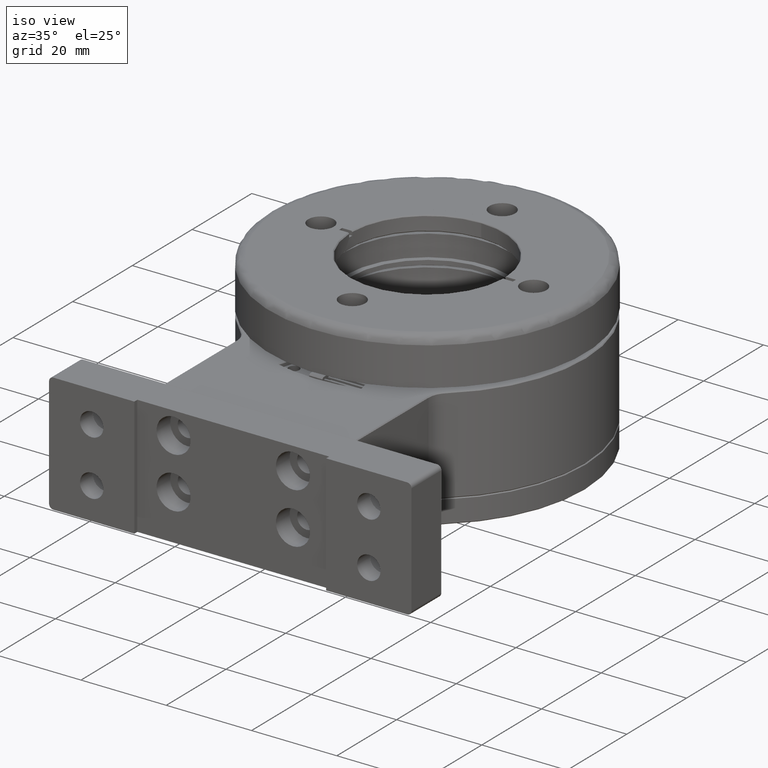
[diagram: clean part render]
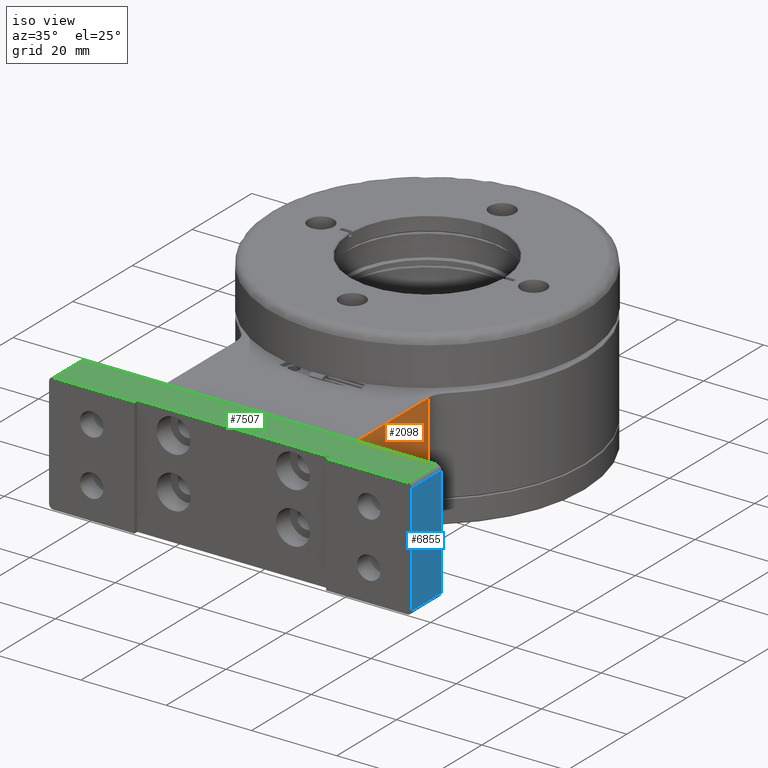
[diagram: same view with three faces highlighted in distinct colors, each labeled with its STEP entity id]
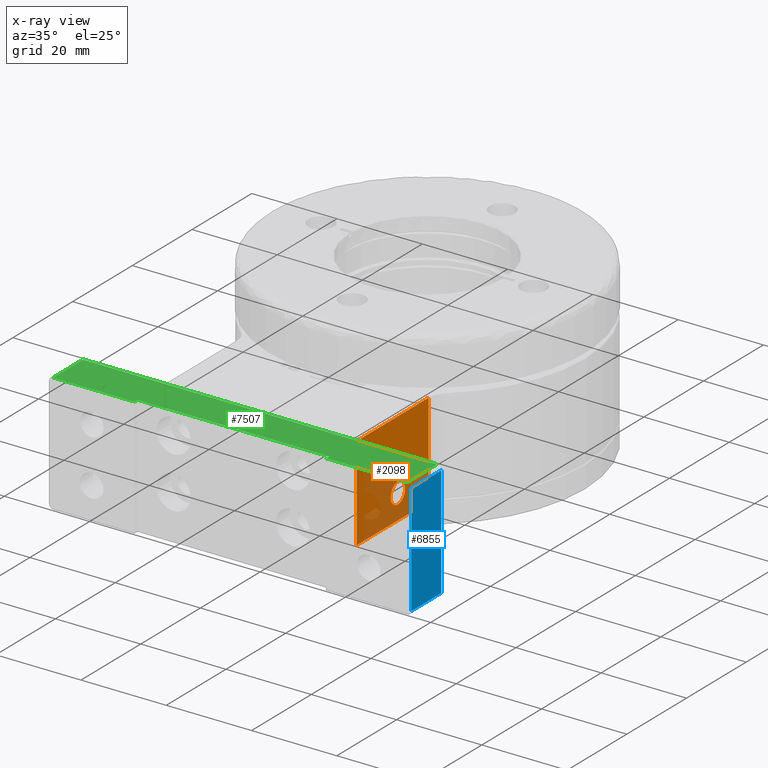
[diagram: x-ray of the same camera — body ghosted, the three highlighted faces saturated]
A machine part, iso view with three faces highlighted in distinct colors.
The next image is the same camera in x-ray (body ghosted, the three faces saturated) — at least one of them is partly hidden behind the body in this view.
Their STEP definitions:

[orange] entity #2098 — the highlighted planar face has unit normal (-1, -0, 0).
#111 = DIRECTION ( 'NONE',  ( 0.000000000000000000, 1.000000000000000000, 0.000000000000000000 ) ) ;
#195 = ORIENTED_EDGE ( 'NONE', *, *, #5778, .F. ) ;
#214 = DIRECTION ( 'NONE',  ( 0.000000000000000000, 0.000000000000000000, 1.000000000000000000 ) ) ;
#427 = LINE ( 'NONE', #5671, #6577 ) ;
#515 = ORIENTED_EDGE ( 'NONE', *, *, #7059, .F. ) ;
#935 = CIRCLE ( 'NONE', #7946, 2.399999999999997691 ) ;
#1309 = CARTESIAN_POINT ( 'NONE',  ( 22.50000000000001066, 0.1999999999999918510, 5.699999999999980638 ) ) ;
#1919 = CARTESIAN_POINT ( 'NONE',  ( 22.50000000000000000, 26.62739371455096915, 27.80000000000002203 ) ) ;
#2036 = EDGE_CURVE ( 'NONE', #2672, #6823, #427, .T. ) ;
#2098 = ADVANCED_FACE ( 'NONE', ( #11546, #3970 ), #6908, .F. ) ;
#2515 = EDGE_LOOP ( 'NONE', ( #9296 ) ) ;
#2672 = VERTEX_POINT ( 'NONE', #1309 ) ;
#3335 = CARTESIAN_POINT ( 'NONE',  ( 22.50000000000908784, 24.25492164130006145, 27.80000000000419291 ) ) ;
#3970 = FACE_BOUND ( 'NONE', #2515, .T. ) ;
#4263 = EDGE_CURVE ( 'NONE', #4924, #4924, #935, .T. ) ;
#4785 = DIRECTION ( 'NONE',  ( -1.000000000000000000, -3.908884574825300925E-16, 0.000000000000000000 ) ) ;
#4850 = CARTESIAN_POINT ( 'NONE',  ( 22.50000000000000000, 26.62739371455096915, 28.00000000000000000 ) ) ;
#4886 = DIRECTION ( 'NONE',  ( 0.000000000000000000, 0.000000000000000000, 1.000000000000000000 ) ) ;
#4924 = VERTEX_POINT ( 'NONE', #6988 ) ;
#5196 = EDGE_LOOP ( 'NONE', ( #515, #195, #8180, #8573 ) ) ;
#5562 = LINE ( 'NONE', #1919, #10037 ) ;
#5671 = CARTESIAN_POINT ( 'NONE',  ( 22.50000000000000000, 56.00000000000000711, 5.699999999999991296 ) ) ;
#5778 = EDGE_CURVE ( 'NONE', #2672, #10884, #6793, .T. ) ;
#5949 = CARTESIAN_POINT ( 'NONE',  ( 22.50000000000909139, 24.25492164130006145, 5.700000000038971670 ) ) ;
#6188 = AXIS2_PLACEMENT_3D ( 'NONE', #4850, #4785, #7795 ) ;
#6577 = VECTOR ( 'NONE', #11896, 1000.000000000000000 ) ;
#6641 = LINE ( 'NONE', #6824, #12052 ) ;
#6793 = LINE ( 'NONE', #9549, #11135 ) ;
#6823 = VERTEX_POINT ( 'NONE', #5949 ) ;
#6824 = CARTESIAN_POINT ( 'NONE',  ( 22.49999999999999289, 24.25492164130006145, 28.00000000000000000 ) ) ;
#6908 = PLANE ( 'NONE',  #6188 ) ;
#6988 = CARTESIAN_POINT ( 'NONE',  ( 22.50000000000000355, 16.39999999999999858, 11.50000000000000178 ) ) ;
#7059 = EDGE_CURVE ( 'NONE', #10884, #9517, #5562, .T. ) ;
#7795 = DIRECTION ( 'NONE',  ( 3.908884574825300925E-16, -1.000000000000000000, 0.000000000000000000 ) ) ;
#7885 = EDGE_CURVE ( 'NONE', #6823, #9517, #6641, .T. ) ;
#7946 = AXIS2_PLACEMENT_3D ( 'NONE', #8701, #8578, #111 ) ;
#8180 = ORIENTED_EDGE ( 'NONE', *, *, #2036, .T. ) ;
#8498 = DIRECTION ( 'NONE',  ( -3.908884574825300925E-16, 1.000000000000000000, -0.000000000000000000 ) ) ;
#8573 = ORIENTED_EDGE ( 'NONE', *, *, #7885, .T. ) ;
#8578 = DIRECTION ( 'NONE',  ( 1.000000000000000000, 3.908884574825300925E-16, -0.000000000000000000 ) ) ;
#8701 = CARTESIAN_POINT ( 'NONE',  ( 22.50000000000000355, 14.00000000000000000, 11.50000000000000178 ) ) ;
#9296 = ORIENTED_EDGE ( 'NONE', *, *, #4263, .F. ) ;
#9517 = VERTEX_POINT ( 'NONE', #3335 ) ;
#9549 = CARTESIAN_POINT ( 'NONE',  ( 22.50000000000001066, 0.1999999999999918510, 28.00000000000000000 ) ) ;
#10037 = VECTOR ( 'NONE', #8498, 1000.000000000000000 ) ;
#10658 = CARTESIAN_POINT ( 'NONE',  ( 22.50000000000001066, 0.1999999999999918510, 27.80000000000002203 ) ) ;
#10884 = VERTEX_POINT ( 'NONE', #10658 ) ;
#11135 = VECTOR ( 'NONE', #214, 1000.000000000000000 ) ;
#11546 = FACE_OUTER_BOUND ( 'NONE', #5196, .T. ) ;
#11896 = DIRECTION ( 'NONE',  ( -1.954442287412525477E-16, 1.000000000000000000, 1.954442287412650216E-16 ) ) ;
#12052 = VECTOR ( 'NONE', #4886, 1000.000000000000000 ) ;

[blue] entity #6855 — the highlighted planar face has unit normal (-1, 0, 0).
#248 = EDGE_LOOP ( 'NONE', ( #4682, #4245, #8001, #6179 ) ) ;
#290 = CARTESIAN_POINT ( 'NONE',  ( 42.50000000000000711, 0.000000000000000000, 27.05000000000000426 ) ) ;
#943 = VECTOR ( 'NONE', #1714, 1000.000000000000000 ) ;
#1021 = LINE ( 'NONE', #4848, #3388 ) ;
#1119 = PLANE ( 'NONE',  #1820 ) ;
#1714 = DIRECTION ( 'NONE',  ( -0.000000000000000000, -1.000000000000000000, 0.000000000000000000 ) ) ;
#1820 = AXIS2_PLACEMENT_3D ( 'NONE', #2257, #4946, #2449 ) ;
#1824 = LINE ( 'NONE', #4707, #2375 ) ;
#1947 = VECTOR ( 'NONE', #10938, 1000.000000000000000 ) ;
#2042 = VERTEX_POINT ( 'NONE', #2376 ) ;
#2124 = CARTESIAN_POINT ( 'NONE',  ( 42.50000000000000711, 0.000000000000000000, 1.050000000000004041 ) ) ;
#2257 = CARTESIAN_POINT ( 'NONE',  ( 42.50000000000000711, 0.000000000000000000, 28.05000000000000426 ) ) ;
#2375 = VECTOR ( 'NONE', #4832, 1000.000000000000000 ) ;
#2376 = CARTESIAN_POINT ( 'NONE',  ( 42.50000000000000711, -10.00000000000000000, 1.050000000000004041 ) ) ;
#2449 = DIRECTION ( 'NONE',  ( 0.000000000000000000, 0.000000000000000000, 1.000000000000000000 ) ) ;
#3388 = VECTOR ( 'NONE', #8662, 1000.000000000000000 ) ;
#4245 = ORIENTED_EDGE ( 'NONE', *, *, #12004, .T. ) ;
#4647 = EDGE_CURVE ( 'NONE', #5914, #6644, #8882, .T. ) ;
#4682 = ORIENTED_EDGE ( 'NONE', *, *, #4737, .F. ) ;
#4707 = CARTESIAN_POINT ( 'NONE',  ( 42.50000000000000711, -10.00000000000000000, 28.05000000000000426 ) ) ;
#4737 = EDGE_CURVE ( 'NONE', #8049, #2042, #6483, .T. ) ;
#4832 = DIRECTION ( 'NONE',  ( 0.000000000000000000, 0.000000000000000000, 1.000000000000000000 ) ) ;
#4848 = CARTESIAN_POINT ( 'NONE',  ( 42.50000000000000711, 0.000000000000000000, 14.05000000000000249 ) ) ;
#4946 = DIRECTION ( 'NONE',  ( -1.000000000000000000, 0.000000000000000000, 0.000000000000000000 ) ) ;
#5914 = VERTEX_POINT ( 'NONE', #11930 ) ;
#6179 = ORIENTED_EDGE ( 'NONE', *, *, #11249, .F. ) ;
#6483 = LINE ( 'NONE', #9183, #943 ) ;
#6644 = VERTEX_POINT ( 'NONE', #12341 ) ;
#6855 = ADVANCED_FACE ( 'NONE', ( #10640 ), #1119, .F. ) ;
#8001 = ORIENTED_EDGE ( 'NONE', *, *, #4647, .F. ) ;
#8049 = VERTEX_POINT ( 'NONE', #2124 ) ;
#8662 = DIRECTION ( 'NONE',  ( -0.000000000000000000, 0.000000000000000000, 1.000000000000000000 ) ) ;
#8882 = LINE ( 'NONE', #290, #1947 ) ;
#9183 = CARTESIAN_POINT ( 'NONE',  ( 42.50000000000000711, 0.000000000000000000, 1.050000000000004041 ) ) ;
#10640 = FACE_OUTER_BOUND ( 'NONE', #248, .T. ) ;
#10938 = DIRECTION ( 'NONE',  ( 0.000000000000000000, 1.000000000000000000, -0.000000000000000000 ) ) ;
#11249 = EDGE_CURVE ( 'NONE', #2042, #5914, #1824, .T. ) ;
#11930 = CARTESIAN_POINT ( 'NONE',  ( 42.50000000000000711, -10.00000000000000000, 27.05000000000000426 ) ) ;
#12004 = EDGE_CURVE ( 'NONE', #8049, #6644, #1021, .T. ) ;
#12341 = CARTESIAN_POINT ( 'NONE',  ( 42.50000000000000711, 0.000000000000000000, 27.05000000000000426 ) ) ;

[green] entity #7507 — the highlighted planar face has unit normal (0, 0, -1).
#15 = LINE ( 'NONE', #3851, #4835 ) ;
#21 = CARTESIAN_POINT ( 'NONE',  ( -1.734723475976807094E-15, 0.000000000000000000, 28.05000000000000426 ) ) ;
#39 = EDGE_CURVE ( 'NONE', #5879, #4220, #11894, .T. ) ;
#71 = VECTOR ( 'NONE', #1972, 1000.000000000000000 ) ;
#265 = CARTESIAN_POINT ( 'NONE',  ( -42.49999999999999289, -9.000000000000001776, 28.05000000000000426 ) ) ;
#303 = ORIENTED_EDGE ( 'NONE', *, *, #7498, .T. ) ;
#709 = CARTESIAN_POINT ( 'NONE',  ( -42.49999999999999289, 0.000000000000000000, 28.05000000000000426 ) ) ;
#713 = VECTOR ( 'NONE', #5934, 1000.000000000000000 ) ;
#876 = CARTESIAN_POINT ( 'NONE',  ( 41.50000000000000711, -10.00000000000000000, 28.05000000000000426 ) ) ;
#949 = EDGE_CURVE ( 'NONE', #2103, #7000, #9790, .T. ) ;
#1171 = ORIENTED_EDGE ( 'NONE', *, *, #2032, .F. ) ;
#1344 = VECTOR ( 'NONE', #6254, 1000.000000000000000 ) ;
#1524 = ORIENTED_EDGE ( 'NONE', *, *, #949, .F. ) ;
#1659 = DIRECTION ( 'NONE',  ( 0.000000000000000000, 1.000000000000000000, -0.000000000000000000 ) ) ;
#1782 = DIRECTION ( 'NONE',  ( -1.000000000000000000, 0.000000000000000000, -0.000000000000000000 ) ) ;
#1844 = DIRECTION ( 'NONE',  ( 0.000000000000000000, 1.000000000000000000, 0.000000000000000000 ) ) ;
#1881 = CARTESIAN_POINT ( 'NONE',  ( -41.49999999999999289, 0.000000000000000000, 28.05000000000000426 ) ) ;
#1972 = DIRECTION ( 'NONE',  ( -1.000000000000000000, -0.000000000000000000, -0.000000000000000000 ) ) ;
#2032 = EDGE_CURVE ( 'NONE', #12352, #4217, #6258, .T. ) ;
#2095 = CARTESIAN_POINT ( 'NONE',  ( -42.49999999999999289, -10.00000000000000000, 28.05000000000000426 ) ) ;
#2097 = LINE ( 'NONE', #21, #71 ) ;
#2103 = VERTEX_POINT ( 'NONE', #10607 ) ;
#2343 = VECTOR ( 'NONE', #11435, 1000.000000000000000 ) ;
#2411 = VERTEX_POINT ( 'NONE', #3510 ) ;
#3045 = LINE ( 'NONE', #2095, #2343 ) ;
#3510 = CARTESIAN_POINT ( 'NONE',  ( 22.49999999999999289, -10.00000000000000000, 28.05000000000000071 ) ) ;
#3516 = DIRECTION ( 'NONE',  ( -1.000000000000000000, 0.000000000000000000, -0.000000000000000000 ) ) ;
#3731 = ORIENTED_EDGE ( 'NONE', *, *, #10750, .T. ) ;
#3738 = CARTESIAN_POINT ( 'NONE',  ( -22.50000000000000711, -9.000000000000001776, 28.05000000000000426 ) ) ;
#3851 = CARTESIAN_POINT ( 'NONE',  ( -22.50000000000000711, -9.000000000000001776, 28.05000000000000426 ) ) ;
#3852 = CARTESIAN_POINT ( 'NONE',  ( -22.50000000000000711, -10.00000000000000000, 28.05000000000000426 ) ) ;
#3872 = ORIENTED_EDGE ( 'NONE', *, *, #5323, .T. ) ;
#3905 = ORIENTED_EDGE ( 'NONE', *, *, #4111, .F. ) ;
#3929 = LINE ( 'NONE', #7635, #713 ) ;
#4111 = EDGE_CURVE ( 'NONE', #4839, #12352, #8398, .T. ) ;
#4217 = VERTEX_POINT ( 'NONE', #1881 ) ;
#4220 = VERTEX_POINT ( 'NONE', #876 ) ;
#4835 = VECTOR ( 'NONE', #1659, 1000.000000000000000 ) ;
#4839 = VERTEX_POINT ( 'NONE', #3852 ) ;
#4990 = VECTOR ( 'NONE', #1844, 1000.000000000000000 ) ;
#5288 = DIRECTION ( 'NONE',  ( -1.000000000000000000, 0.000000000000000000, -0.000000000000000000 ) ) ;
#5323 = EDGE_CURVE ( 'NONE', #2103, #2411, #3929, .T. ) ;
#5799 = EDGE_CURVE ( 'NONE', #4220, #2411, #3045, .T. ) ;
#5879 = VERTEX_POINT ( 'NONE', #9108 ) ;
#5934 = DIRECTION ( 'NONE',  ( 0.000000000000000000, -1.000000000000000000, -0.000000000000000000 ) ) ;
#6254 = DIRECTION ( 'NONE',  ( -0.000000000000000000, -1.000000000000000000, -0.000000000000000000 ) ) ;
#6258 = LINE ( 'NONE', #10428, #4990 ) ;
#6559 = VECTOR ( 'NONE', #5288, 1000.000000000000000 ) ;
#7000 = VERTEX_POINT ( 'NONE', #3738 ) ;
#7498 = EDGE_CURVE ( 'NONE', #4839, #7000, #15, .T. ) ;
#7507 = ADVANCED_FACE ( 'NONE', ( #9298 ), #11362, .F. ) ;
#7635 = CARTESIAN_POINT ( 'NONE',  ( 22.49999999999999289, -9.000000000000001776, 28.04999999999999716 ) ) ;
#7636 = AXIS2_PLACEMENT_3D ( 'NONE', #709, #9360, #1782 ) ;
#8011 = ORIENTED_EDGE ( 'NONE', *, *, #39, .F. ) ;
#8398 = LINE ( 'NONE', #12230, #8947 ) ;
#8559 = EDGE_LOOP ( 'NONE', ( #1171, #3905, #303, #1524, #3872, #10893, #8011, #3731 ) ) ;
#8947 = VECTOR ( 'NONE', #3516, 1000.000000000000000 ) ;
#9108 = CARTESIAN_POINT ( 'NONE',  ( 41.50000000000000711, 0.000000000000000000, 28.05000000000000426 ) ) ;
#9298 = FACE_OUTER_BOUND ( 'NONE', #8559, .T. ) ;
#9360 = DIRECTION ( 'NONE',  ( 0.000000000000000000, 0.000000000000000000, -1.000000000000000000 ) ) ;
#9790 = LINE ( 'NONE', #265, #6559 ) ;
#9827 = CARTESIAN_POINT ( 'NONE',  ( -41.49999999999999289, -10.00000000000000000, 28.05000000000000426 ) ) ;
#10012 = CARTESIAN_POINT ( 'NONE',  ( 41.50000000000000711, 0.000000000000000000, 28.05000000000000426 ) ) ;
#10428 = CARTESIAN_POINT ( 'NONE',  ( -41.49999999999999289, 0.000000000000000000, 28.05000000000000426 ) ) ;
#10607 = CARTESIAN_POINT ( 'NONE',  ( 22.49999999999999289, -9.000000000000001776, 28.05000000000000071 ) ) ;
#10750 = EDGE_CURVE ( 'NONE', #5879, #4217, #2097, .T. ) ;
#10893 = ORIENTED_EDGE ( 'NONE', *, *, #5799, .F. ) ;
#11362 = PLANE ( 'NONE',  #7636 ) ;
#11435 = DIRECTION ( 'NONE',  ( -1.000000000000000000, 0.000000000000000000, -0.000000000000000000 ) ) ;
#11894 = LINE ( 'NONE', #10012, #1344 ) ;
#12230 = CARTESIAN_POINT ( 'NONE',  ( -42.49999999999999289, -10.00000000000000000, 28.05000000000000426 ) ) ;
#12352 = VERTEX_POINT ( 'NONE', #9827 ) ;